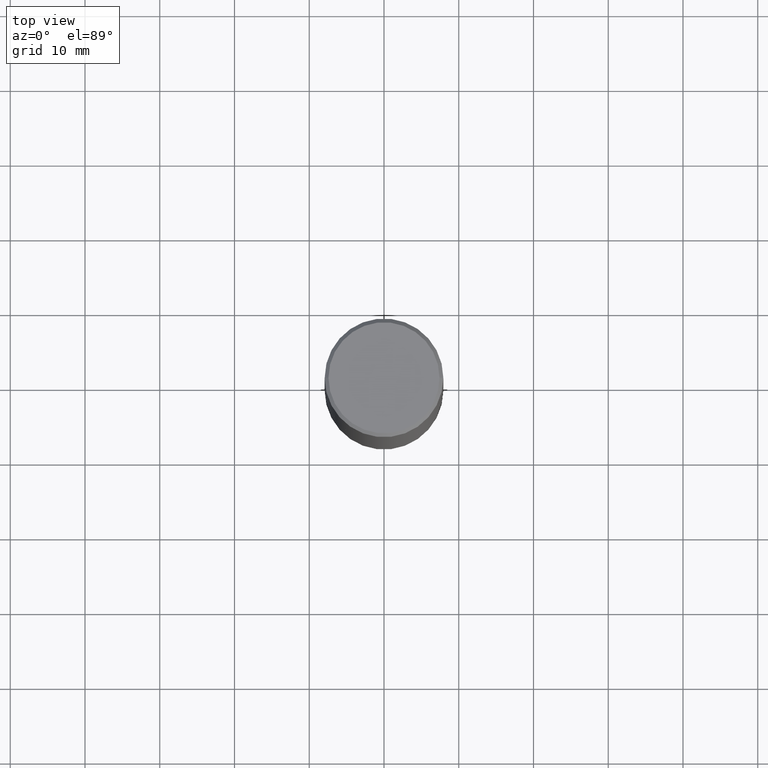
[diagram: clean part render]
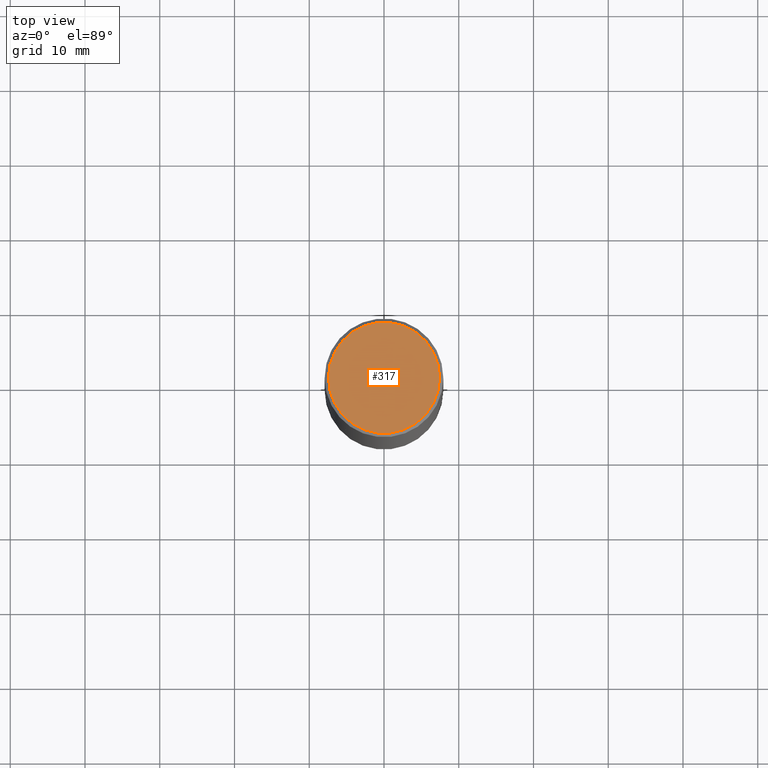
[diagram: same view with one face highlighted and labeled with its STEP entity id]
A machine part, top view. The second image highlights one B-rep face of the part: STEP entity #317.
In plain terms, the highlighted planar face has unit normal (0, -0, -1).
Its self-contained STEP definition (entity closure, byte-faithful):
#9 = EDGE_CURVE ( 'NONE', #280, #33, #139, .T. ) ;
#18 = ORIENTED_EDGE ( 'NONE', *, *, #9, .T. ) ;
#33 = VERTEX_POINT ( 'NONE', #328 ) ;
#48 = AXIS2_PLACEMENT_3D ( 'NONE', #350, #103, #188 ) ;
#59 = DIRECTION ( 'NONE',  ( 2.438088387897960049E-29, -3.491481338843145188E-15, -1.000000000000000000 ) ) ;
#64 = CIRCLE ( 'NONE', #326, 0.2924999999999997602 ) ;
#103 = DIRECTION ( 'NONE',  ( -2.445468806185136597E-29, 3.491481338843145583E-15, 1.000000000000000000 ) ) ;
#117 = CARTESIAN_POINT ( 'NONE',  ( 0.2924999999999997602, -2.110215457714318353E-15, 4.268512490114932791E-18 ) ) ;
#126 = EDGE_CURVE ( 'NONE', #33, #280, #64, .T. ) ;
#135 = FACE_OUTER_BOUND ( 'NONE', #153, .T. ) ;
#139 = CIRCLE ( 'NONE', #48, 0.2924999999999997602 ) ;
#153 = EDGE_LOOP ( 'NONE', ( #336, #18 ) ) ;
#161 = DIRECTION ( 'NONE',  ( 1.000000000000000000, -6.982962677686266711E-15, 4.876067333457693400E-29 ) ) ;
#163 = PLANE ( 'NONE',  #348 ) ;
#188 = DIRECTION ( 'NONE',  ( 1.000000000000000000, -6.982962677686266711E-15, 4.876067333457693400E-29 ) ) ;
#189 = CARTESIAN_POINT ( 'NONE',  ( -1.043851414335219820E-46, 1.490343170380447200E-32, 4.268512490100411279E-18 ) ) ;
#280 = VERTEX_POINT ( 'NONE', #117 ) ;
#299 = DIRECTION ( 'NONE',  ( -2.445468806185136597E-29, 3.491481338843145583E-15, 1.000000000000000000 ) ) ;
#313 = CARTESIAN_POINT ( 'NONE',  ( 2.042516583223231356E-15, 0.2924999999999997602, -1.019124035366569212E-15 ) ) ;
#317 = ADVANCED_FACE ( 'NONE', ( #135 ), #163, .F. ) ;
#326 = AXIS2_PLACEMENT_3D ( 'NONE', #189, #299, #161 ) ;
#328 = CARTESIAN_POINT ( 'NONE',  ( -0.2924999999999997602, 2.077431396611662611E-15, 4.268512490086005323E-18 ) ) ;
#336 = ORIENTED_EDGE ( 'NONE', *, *, #126, .T. ) ;
#348 = AXIS2_PLACEMENT_3D ( 'NONE', #313, #59, #362 ) ;
#350 = CARTESIAN_POINT ( 'NONE',  ( -1.043851414335219820E-46, 1.490343170380447200E-32, 4.268512490100411279E-18 ) ) ;
#362 = DIRECTION ( 'NONE',  ( -1.000000000000000000, 6.982962677686265922E-15, -4.876176775795935793E-29 ) ) ;